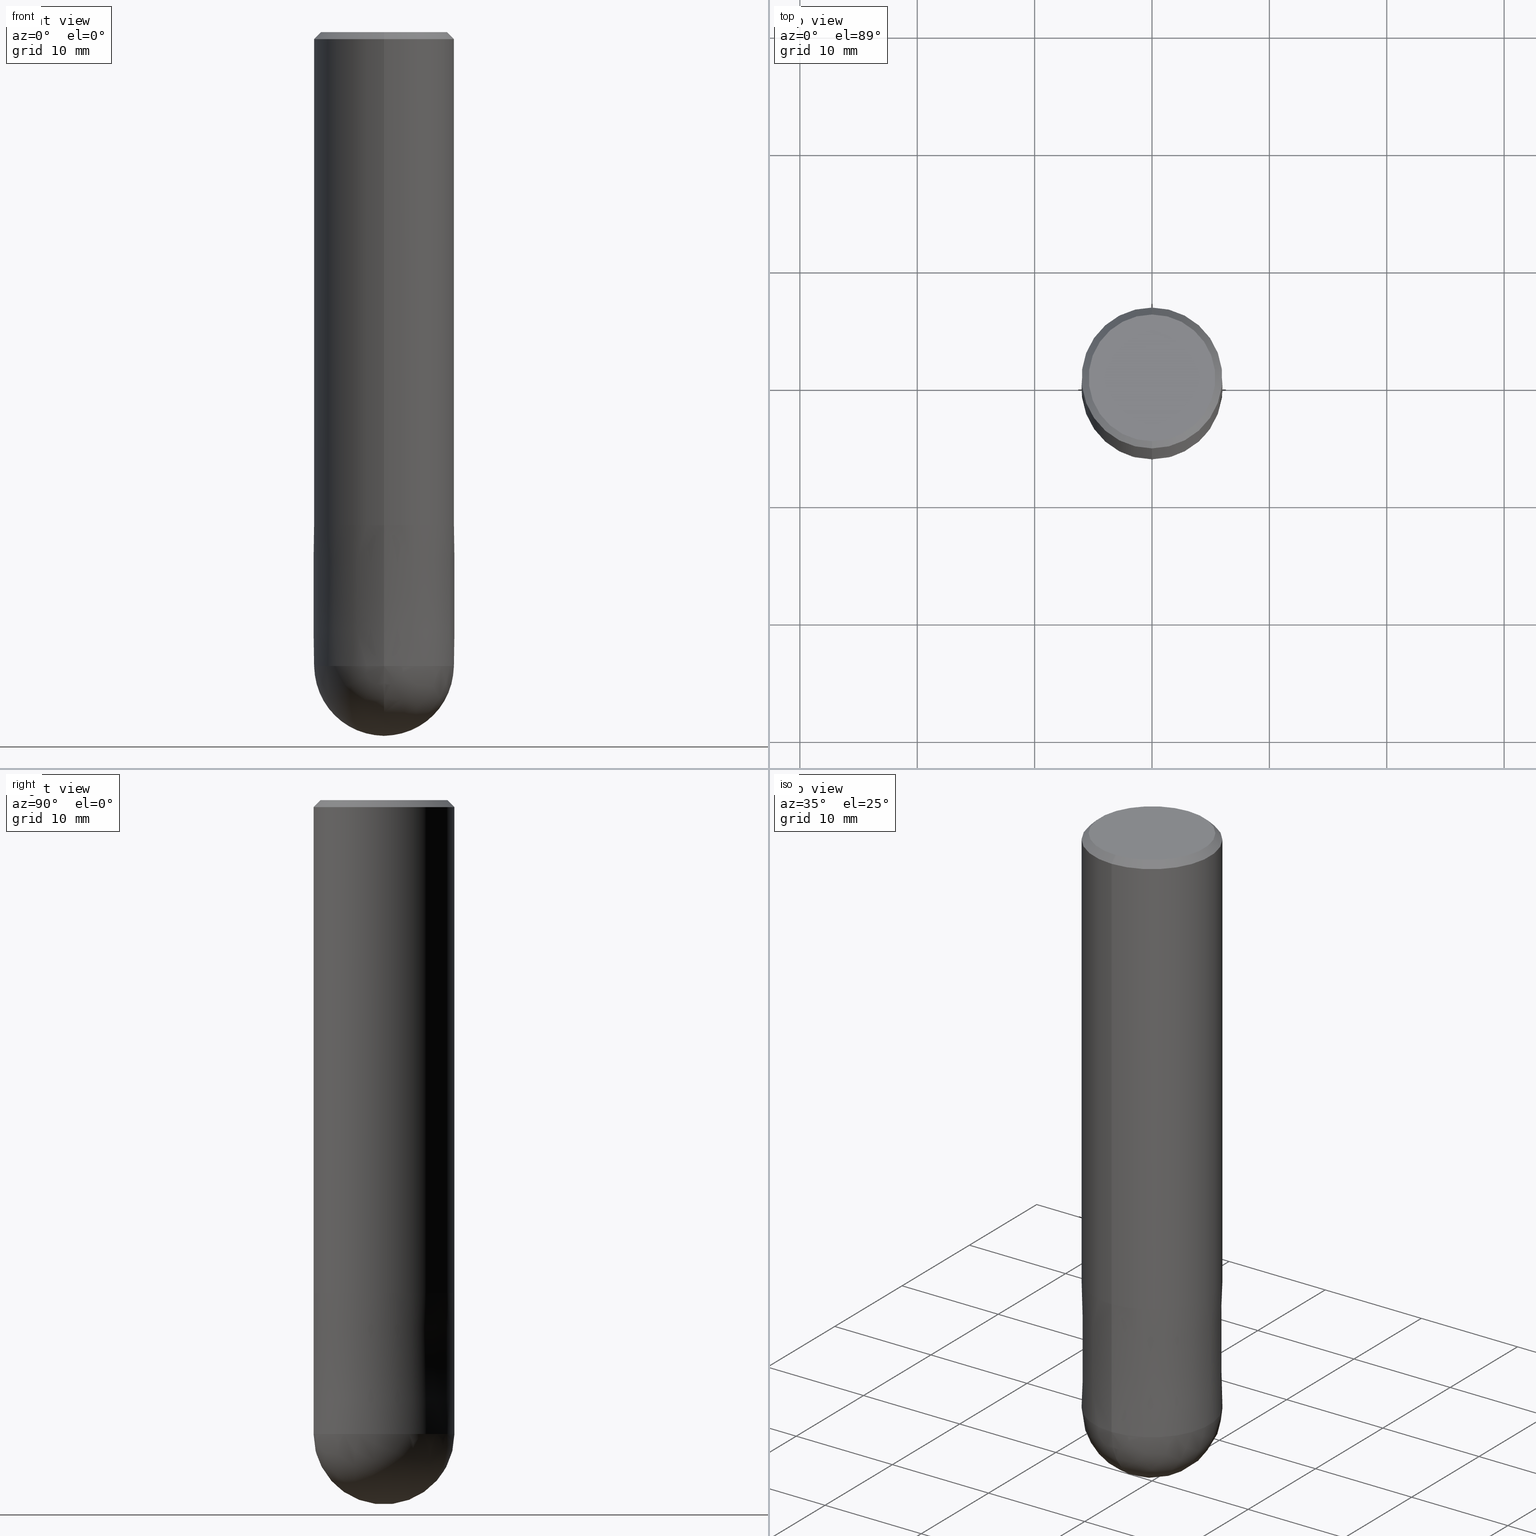
[diagram: canonical four-view strip — front | top / right | iso, engineering-drawing reading convention]
A machine part, canonical four-view strip (front | top / right | iso — engineering-drawing reading convention). The complete STEP part file that produces these views, byte-faithful:
ISO-10303-21;
HEADER;
FILE_DESCRIPTION(('no description'),'unknown implementation level');
FILE_NAME('HFB4120-1800S-Huellk.stp','  ',('CIMSOURCE GmbH'),('CADClick - KiM GmbH - www.kimweb.de'),'unknown preprocess','ACIS','unknown authorization');
FILE_SCHEMA(('automotive_design'));
ENDSEC;
DATA;
#1=MECHANICAL_DESIGN_GEOMETRIC_PRESENTATION_REPRESENTATION(' ',(#10,#11,#12,#13,#14,#15,#16,#17,#18,#19,#20,#21,#22,#23,#24,#25,#26,#27,#28,#29,#30,#31,#32,#33,#34,#35,#36,#37,#38,#39,#40,#41,#42,#43,#44,#45,#46,#47),#6);
#2=PRODUCT_DEFINITION_CONTEXT('',#48,'design');
#3=APPLICATION_PROTOCOL_DEFINITION('INTERNATIONAL STANDARD','automotive_design',1994,#48);
#4=PRODUCT_CATEGORY_RELATIONSHIP('NONE','NONE',#49,#50);
#5=SHAPE_DEFINITION_REPRESENTATION(#51,#52);
#6= (GEOMETRIC_REPRESENTATION_CONTEXT(3)GLOBAL_UNCERTAINTY_ASSIGNED_CONTEXT((#55))GLOBAL_UNIT_ASSIGNED_CONTEXT((#57,#58,#59))REPRESENTATION_CONTEXT('NONE','WORKSPACE'));
#10=STYLED_ITEM('',(#61),#62);
#11=STYLED_ITEM('',(#63),#64);
#12=STYLED_ITEM('',(#65),#66);
#13=STYLED_ITEM('',(#67),#68);
#14=STYLED_ITEM('',(#69),#70);
#15=STYLED_ITEM('',(#71),#72);
#16=STYLED_ITEM('',(#73),#74);
#17=STYLED_ITEM('',(#75),#76);
#18=STYLED_ITEM('',(#77),#78);
#19=STYLED_ITEM('',(#79),#80);
#20=STYLED_ITEM('',(#81),#82);
#21=STYLED_ITEM('',(#83),#84);
#22=STYLED_ITEM('',(#85),#86);
#23=STYLED_ITEM('',(#87),#88);
#24=STYLED_ITEM('',(#89),#90);
#25=STYLED_ITEM('',(#91),#92);
#26=STYLED_ITEM('',(#93),#94);
#27=STYLED_ITEM('',(#95),#96);
#28=STYLED_ITEM('',(#97),#98);
#29=STYLED_ITEM('',(#99),#100);
#30=STYLED_ITEM('',(#101),#102);
#31=STYLED_ITEM('',(#103),#104);
#32=STYLED_ITEM('',(#105),#106);
#33=STYLED_ITEM('',(#107),#108);
#34=STYLED_ITEM('',(#109),#110);
#35=STYLED_ITEM('',(#111),#112);
#36=STYLED_ITEM('',(#113),#114);
#37=STYLED_ITEM('',(#115),#116);
#38=STYLED_ITEM('',(#117),#118);
#39=STYLED_ITEM('',(#119),#120);
#40=STYLED_ITEM('',(#121),#122);
#41=STYLED_ITEM('',(#123),#124);
#42=STYLED_ITEM('',(#125),#126);
#43=STYLED_ITEM('',(#127),#128);
#44=STYLED_ITEM('',(#129),#130);
#45=STYLED_ITEM('',(#131),#132);
#46=STYLED_ITEM('',(#133),#134);
#47=STYLED_ITEM('',(#135),#136);
#48=APPLICATION_CONTEXT(' ');
#49=PRODUCT_CATEGORY('part','NONE');
#50=PRODUCT_RELATED_PRODUCT_CATEGORY('detail',' ',(#137));
#51=PRODUCT_DEFINITION_SHAPE('NONE','NONE',#138);
#52=ADVANCED_BREP_SHAPE_REPRESENTATION('1',(#80,#139),#6);
#55=UNCERTAINTY_MEASURE_WITH_UNIT(LENGTH_MEASURE(1.0E-006),#57,'','');
#57= (CONVERSION_BASED_UNIT('MILLIMETRE',#142)LENGTH_UNIT()NAMED_UNIT(#145));
#58= (NAMED_UNIT(#147)PLANE_ANGLE_UNIT()SI_UNIT($,.RADIAN.));
#59= (NAMED_UNIT(#147)SOLID_ANGLE_UNIT()SI_UNIT($,.STERADIAN.));
#61=PRESENTATION_STYLE_ASSIGNMENT((#153));
#62=ADVANCED_FACE('',(#154),#155,.T.);
#63=PRESENTATION_STYLE_ASSIGNMENT((#156));
#64=ADVANCED_FACE('',(#157),#158,.T.);
#65=PRESENTATION_STYLE_ASSIGNMENT((#159));
#66=VERTEX_POINT('',#160);
#67=PRESENTATION_STYLE_ASSIGNMENT((#161));
#68=ADVANCED_FACE('',(#162,#163),#164,.T.);
#69=PRESENTATION_STYLE_ASSIGNMENT((#165));
#70=EDGE_CURVE('',#126,#110,#166,.T.);
#71=PRESENTATION_STYLE_ASSIGNMENT((#167));
#72=EDGE_CURVE('',#92,#66,#168,.T.);
#73=PRESENTATION_STYLE_ASSIGNMENT((#169));
#74=VERTEX_POINT('',#170);
#75=PRESENTATION_STYLE_ASSIGNMENT((#171));
#76=EDGE_CURVE('',#88,#66,#172,.T.);
#77=PRESENTATION_STYLE_ASSIGNMENT((#173));
#78=VERTEX_POINT('',#174);
#79=PRESENTATION_STYLE_ASSIGNMENT((#175));
#80=MANIFOLD_SOLID_BREP('1',#176);
#81=PRESENTATION_STYLE_ASSIGNMENT((#177));
#82=ADVANCED_FACE('',(#178),#179,.T.);
#83=PRESENTATION_STYLE_ASSIGNMENT((#180));
#84=ADVANCED_FACE('',(#181),#182,.T.);
#85=PRESENTATION_STYLE_ASSIGNMENT((#183));
#86=VERTEX_POINT('',#184);
#87=PRESENTATION_STYLE_ASSIGNMENT((#185));
#88=VERTEX_POINT('',#186);
#89=PRESENTATION_STYLE_ASSIGNMENT((#187));
#90=EDGE_CURVE('',#94,#88,#188,.T.);
#91=PRESENTATION_STYLE_ASSIGNMENT((#189));
#92=VERTEX_POINT('',#190);
#93=PRESENTATION_STYLE_ASSIGNMENT((#191));
#94=VERTEX_POINT('',#192);
#95=PRESENTATION_STYLE_ASSIGNMENT((#193));
#96=EDGE_CURVE('',#116,#110,#194,.T.);
#97=PRESENTATION_STYLE_ASSIGNMENT((#195));
#98=EDGE_CURVE('',#126,#78,#196,.T.);
#99=PRESENTATION_STYLE_ASSIGNMENT((#197));
#100=ADVANCED_FACE('',(#198),#199,.T.);
#101=PRESENTATION_STYLE_ASSIGNMENT((#200));
#102=EDGE_CURVE('',#86,#74,#201,.T.);
#103=PRESENTATION_STYLE_ASSIGNMENT((#202));
#104=ADVANCED_FACE('',(#203),#204,.T.);
#105=PRESENTATION_STYLE_ASSIGNMENT((#205));
#106=EDGE_CURVE('',#116,#110,#206,.T.);
#107=PRESENTATION_STYLE_ASSIGNMENT((#207));
#108=EDGE_CURVE('',#66,#92,#208,.T.);
#109=PRESENTATION_STYLE_ASSIGNMENT((#209));
#110=VERTEX_POINT('',#210);
#111=PRESENTATION_STYLE_ASSIGNMENT((#211));
#112=EDGE_CURVE('',#92,#94,#212,.T.);
#113=PRESENTATION_STYLE_ASSIGNMENT((#213));
#114=EDGE_CURVE('',#78,#126,#214,.T.);
#115=PRESENTATION_STYLE_ASSIGNMENT((#215));
#116=VERTEX_POINT('',#216);
#117=PRESENTATION_STYLE_ASSIGNMENT((#217));
#118=EDGE_CURVE('',#74,#88,#218,.T.);
#119=PRESENTATION_STYLE_ASSIGNMENT((#219));
#120=EDGE_CURVE('',#94,#86,#220,.T.);
#121=PRESENTATION_STYLE_ASSIGNMENT((#221));
#122=EDGE_CURVE('',#110,#116,#222,.T.);
#123=PRESENTATION_STYLE_ASSIGNMENT((#223));
#124=ADVANCED_FACE('',(#224),#225,.T.);
#125=PRESENTATION_STYLE_ASSIGNMENT((#226));
#126=VERTEX_POINT('',#227);
#127=PRESENTATION_STYLE_ASSIGNMENT((#228));
#128=EDGE_CURVE('',#74,#86,#229,.T.);
#129=PRESENTATION_STYLE_ASSIGNMENT((#230));
#130=EDGE_CURVE('',#116,#78,#231,.T.);
#131=PRESENTATION_STYLE_ASSIGNMENT((#232));
#132=EDGE_CURVE('',#88,#94,#233,.T.);
#133=PRESENTATION_STYLE_ASSIGNMENT((#234));
#134=ADVANCED_FACE('',(#235),#236,.T.);
#135=PRESENTATION_STYLE_ASSIGNMENT((#237));
#136=ADVANCED_FACE('',(#238),#239,.T.);
#137=PRODUCT('1','1','PART-1-DESC',(#240));
#138=PRODUCT_DEFINITION('NONE','NONE',#241,#2);
#139=AXIS2_PLACEMENT_3D('',#242,#243,#244);
#142=LENGTH_MEASURE_WITH_UNIT(LENGTH_MEASURE(1.0),#245);
#145=DIMENSIONAL_EXPONENTS(1.0,0.0,0.0,0.0,0.0,0.0,0.0);
#147=DIMENSIONAL_EXPONENTS(0.0,0.0,0.0,0.0,0.0,0.0,0.0);
#153=SURFACE_STYLE_USAGE(.BOTH.,#246);
#154=FACE_OUTER_BOUND('',#247,.T.);
#155=CYLINDRICAL_SURFACE('',#248,6.0);
#156=SURFACE_STYLE_USAGE(.BOTH.,#249);
#157=FACE_OUTER_BOUND('',#250,.T.);
#158=CONICAL_SURFACE('',#251,5.99995,8.33333333319503E-006);
#159=POINT_STYLE(' ',#252,POSITIVE_LENGTH_MEASURE(1.0E-006),#253);
#160=CARTESIAN_POINT('',(6.61287431064084E-016,-5.4,0.0));
#161=SURFACE_STYLE_USAGE(.BOTH.,#254);
#162=FACE_OUTER_BOUND('',#255,.T.);
#163=FACE_BOUND('',#256,.T.);
#164=PLANE('',#257);
#165=CURVE_STYLE('',#258,POSITIVE_LENGTH_MEASURE(1.0E-006),#259);
#166=LINE('',#260,#261);
#167=CURVE_STYLE('',#262,POSITIVE_LENGTH_MEASURE(1.0E-006),#263);
#168=CIRCLE('',#264,5.4);
#169=POINT_STYLE(' ',#265,POSITIVE_LENGTH_MEASURE(1.0E-006),#266);
#170=CARTESIAN_POINT('',(7.34763812293426E-016,-6.0,-42.0));
#171=CURVE_STYLE('',#267,POSITIVE_LENGTH_MEASURE(1.0E-006),#268);
#172=LINE('',#269,#270);
#173=POINT_STYLE(' ',#271,POSITIVE_LENGTH_MEASURE(1.0E-006),#272);
#174=CARTESIAN_POINT('',(7.34751566229888E-016,-5.9999,-42.0));
#175=SURFACE_STYLE_USAGE(.BOTH.,#273);
#176=CLOSED_SHELL('',(#104,#134,#100,#136,#68,#124,#84,#62,#64,#82));
#177=SURFACE_STYLE_USAGE(.BOTH.,#274);
#178=FACE_OUTER_BOUND('',#275,.T.);
#179=SPHERICAL_SURFACE('',#276,6.00000000000001);
#180=SURFACE_STYLE_USAGE(.BOTH.,#277);
#181=FACE_OUTER_BOUND('',#278,.T.);
#182=CONICAL_SURFACE('',#279,5.7,0.785398163397447);
#183=POINT_STYLE(' ',#280,POSITIVE_LENGTH_MEASURE(1.0E-006),#281);
#184=CARTESIAN_POINT('',(0.0,6.0,-42.0));
#185=POINT_STYLE(' ',#282,POSITIVE_LENGTH_MEASURE(1.0E-006),#283);
#186=CARTESIAN_POINT('',(7.34763812293426E-016,-6.0,-0.600000000000001));
#187=CURVE_STYLE('',#284,POSITIVE_LENGTH_MEASURE(1.0E-006),#285);
#188=CIRCLE('',#286,6.0);
#189=POINT_STYLE(' ',#287,POSITIVE_LENGTH_MEASURE(1.0E-006),#288);
#190=CARTESIAN_POINT('',(0.0,5.4,0.0));
#191=POINT_STYLE(' ',#289,POSITIVE_LENGTH_MEASURE(1.0E-006),#290);
#192=CARTESIAN_POINT('',(0.0,6.0,-0.600000000000001));
#193=CURVE_STYLE('',#291,POSITIVE_LENGTH_MEASURE(1.0E-006),#292);
#194=CIRCLE('',#293,6.00000000000001);
#195=CURVE_STYLE('',#294,POSITIVE_LENGTH_MEASURE(1.0E-006),#295);
#196=CIRCLE('',#296,5.9999);
#197=SURFACE_STYLE_USAGE(.BOTH.,#297);
#198=FACE_OUTER_BOUND('',#298,.T.);
#199=CYLINDRICAL_SURFACE('',#299,6.0);
#200=CURVE_STYLE('',#300,POSITIVE_LENGTH_MEASURE(1.0E-006),#301);
#201=CIRCLE('',#302,6.0);
#202=SURFACE_STYLE_USAGE(.BOTH.,#303);
#203=FACE_OUTER_BOUND('',#304,.T.);
#204=SPHERICAL_SURFACE('',#305,6.00000000000001);
#205=CURVE_STYLE('',#306,POSITIVE_LENGTH_MEASURE(1.0E-006),#307);
#206=CIRCLE('',#308,6.0);
#207=CURVE_STYLE('',#309,POSITIVE_LENGTH_MEASURE(1.0E-006),#310);
#208=CIRCLE('',#311,5.4);
#209=POINT_STYLE(' ',#312,POSITIVE_LENGTH_MEASURE(1.0E-006),#313);
#210=CARTESIAN_POINT('',(0.0,6.0,-54.0));
#211=CURVE_STYLE('',#314,POSITIVE_LENGTH_MEASURE(1.0E-006),#315);
#212=LINE('',#316,#317);
#213=CURVE_STYLE('',#318,POSITIVE_LENGTH_MEASURE(1.0E-006),#319);
#214=CIRCLE('',#320,5.9999);
#215=POINT_STYLE(' ',#321,POSITIVE_LENGTH_MEASURE(1.0E-006),#322);
#216=CARTESIAN_POINT('',(7.34763812293426E-016,-6.0,-54.0));
#217=CURVE_STYLE('',#323,POSITIVE_LENGTH_MEASURE(1.0E-006),#324);
#218=LINE('',#325,#326);
#219=CURVE_STYLE('',#327,POSITIVE_LENGTH_MEASURE(1.0E-006),#328);
#220=LINE('',#329,#330);
#221=CURVE_STYLE('',#331,POSITIVE_LENGTH_MEASURE(1.0E-006),#332);
#222=CIRCLE('',#333,6.0);
#223=SURFACE_STYLE_USAGE(.BOTH.,#334);
#224=FACE_OUTER_BOUND('',#335,.T.);
#225=PLANE('',#336);
#226=POINT_STYLE(' ',#337,POSITIVE_LENGTH_MEASURE(1.0E-006),#338);
#227=CARTESIAN_POINT('',(0.0,5.9999,-42.0));
#228=CURVE_STYLE('',#339,POSITIVE_LENGTH_MEASURE(1.0E-006),#340);
#229=CIRCLE('',#341,6.0);
#230=CURVE_STYLE('',#342,POSITIVE_LENGTH_MEASURE(1.0E-006),#343);
#231=LINE('',#344,#345);
#232=CURVE_STYLE('',#346,POSITIVE_LENGTH_MEASURE(1.0E-006),#347);
#233=CIRCLE('',#348,6.0);
#234=SURFACE_STYLE_USAGE(.BOTH.,#349);
#235=FACE_OUTER_BOUND('',#350,.T.);
#236=CONICAL_SURFACE('',#351,5.99995,8.33333333319503E-006);
#237=SURFACE_STYLE_USAGE(.BOTH.,#352);
#238=FACE_OUTER_BOUND('',#353,.T.);
#239=CONICAL_SURFACE('',#354,5.7,0.785398163397447);
#240=PRODUCT_CONTEXT('',#48,'mechanical');
#241=PRODUCT_DEFINITION_FORMATION_WITH_SPECIFIED_SOURCE(' ','NONE',#137,.NOT_KNOWN.);
#242=CARTESIAN_POINT('',(0.0,0.0,0.0));
#243=DIRECTION('',(0.0,0.0,1.0));
#244=DIRECTION('',(1.0,0.0,0.0));
#245= (NAMED_UNIT(#145)LENGTH_UNIT()SI_UNIT(.MILLI.,.METRE.));
#246=SURFACE_SIDE_STYLE('',(#356));
#247=EDGE_LOOP('',(#357,#358,#359,#360));
#248=AXIS2_PLACEMENT_3D('',#361,#362,#363);
#249=SURFACE_SIDE_STYLE('',(#364));
#250=EDGE_LOOP('',(#365,#366,#367,#368));
#251=AXIS2_PLACEMENT_3D('',#369,#370,#371);
#252=PRE_DEFINED_MARKER('');
#253=COLOUR_RGB('',0.498039215803146,0.498039215803146,0.498039215803146);
#254=SURFACE_SIDE_STYLE('',(#372));
#255=EDGE_LOOP('',(#373,#374));
#256=EDGE_LOOP('',(#375,#376));
#257=AXIS2_PLACEMENT_3D('',#377,#378,#379);
#258=DRAUGHTING_PRE_DEFINED_CURVE_FONT('continuous');
#259=COLOUR_RGB('',0.800000011920929,0.800000011920929,0.800000011920929);
#260=CARTESIAN_POINT('',(-7.34757689261657E-016,5.99995,-48.0));
#261=VECTOR('',#380,1.0);
#262=DRAUGHTING_PRE_DEFINED_CURVE_FONT('continuous');
#263=COLOUR_RGB('',0.498039215803146,0.498039215803146,0.498039215803146);
#264=AXIS2_PLACEMENT_3D('',#381,#382,#383);
#265=PRE_DEFINED_MARKER('');
#266=COLOUR_RGB('',0.498039215803146,0.498039215803146,0.498039215803146);
#267=DRAUGHTING_PRE_DEFINED_CURVE_FONT('continuous');
#268=COLOUR_RGB('',0.498039215803146,0.498039215803146,0.498039215803146);
#269=CARTESIAN_POINT('',(6.98025621678755E-016,-5.7,-0.299999999999997));
#270=VECTOR('',#384,1.0);
#271=PRE_DEFINED_MARKER('');
#272=COLOUR_RGB('',0.800000011920929,0.800000011920929,0.800000011920929);
#273=SURFACE_SIDE_STYLE('',(#385));
#274=SURFACE_SIDE_STYLE('',(#386));
#275=EDGE_LOOP('',(#387,#388));
#276=AXIS2_PLACEMENT_3D('',#389,#390,#391);
#277=SURFACE_SIDE_STYLE('',(#392));
#278=EDGE_LOOP('',(#393,#394,#395,#396));
#279=AXIS2_PLACEMENT_3D('',#397,#398,#399);
#280=PRE_DEFINED_MARKER('');
#281=COLOUR_RGB('',0.498039215803146,0.498039215803146,0.498039215803146);
#282=PRE_DEFINED_MARKER('');
#283=COLOUR_RGB('',0.498039215803146,0.498039215803146,0.498039215803146);
#284=DRAUGHTING_PRE_DEFINED_CURVE_FONT('continuous');
#285=COLOUR_RGB('',0.498039215803146,0.498039215803146,0.498039215803146);
#286=AXIS2_PLACEMENT_3D('',#400,#401,#402);
#287=PRE_DEFINED_MARKER('');
#288=COLOUR_RGB('',0.498039215803146,0.498039215803146,0.498039215803146);
#289=PRE_DEFINED_MARKER('');
#290=COLOUR_RGB('',0.498039215803146,0.498039215803146,0.498039215803146);
#291=DRAUGHTING_PRE_DEFINED_CURVE_FONT('continuous');
#292=COLOUR_RGB('',0.800000011920929,0.800000011920929,0.800000011920929);
#293=AXIS2_PLACEMENT_3D('',#403,#404,#405);
#294=DRAUGHTING_PRE_DEFINED_CURVE_FONT('continuous');
#295=COLOUR_RGB('',0.800000011920929,0.800000011920929,0.800000011920929);
#296=AXIS2_PLACEMENT_3D('',#406,#407,#408);
#297=SURFACE_SIDE_STYLE('',(#409));
#298=EDGE_LOOP('',(#410,#411,#412,#413));
#299=AXIS2_PLACEMENT_3D('',#414,#415,#416);
#300=DRAUGHTING_PRE_DEFINED_CURVE_FONT('continuous');
#301=COLOUR_RGB('',0.498039215803146,0.498039215803146,0.498039215803146);
#302=AXIS2_PLACEMENT_3D('',#417,#418,#419);
#303=SURFACE_SIDE_STYLE('',(#420));
#304=EDGE_LOOP('',(#421,#422));
#305=AXIS2_PLACEMENT_3D('',#423,#424,#425);
#306=DRAUGHTING_PRE_DEFINED_CURVE_FONT('continuous');
#307=COLOUR_RGB('',0.800000011920929,0.800000011920929,0.800000011920929);
#308=AXIS2_PLACEMENT_3D('',#426,#427,#428);
#309=DRAUGHTING_PRE_DEFINED_CURVE_FONT('continuous');
#310=COLOUR_RGB('',0.498039215803146,0.498039215803146,0.498039215803146);
#311=AXIS2_PLACEMENT_3D('',#429,#430,#431);
#312=PRE_DEFINED_MARKER('');
#313=COLOUR_RGB('',0.800000011920929,0.800000011920929,0.800000011920929);
#314=DRAUGHTING_PRE_DEFINED_CURVE_FONT('continuous');
#315=COLOUR_RGB('',0.498039215803146,0.498039215803146,0.498039215803146);
#316=CARTESIAN_POINT('',(-6.98025621678755E-016,5.7,-0.299999999999997));
#317=VECTOR('',#432,1.0);
#318=DRAUGHTING_PRE_DEFINED_CURVE_FONT('continuous');
#319=COLOUR_RGB('',0.800000011920929,0.800000011920929,0.800000011920929);
#320=AXIS2_PLACEMENT_3D('',#433,#434,#435);
#321=PRE_DEFINED_MARKER('');
#322=COLOUR_RGB('',0.800000011920929,0.800000011920929,0.800000011920929);
#323=DRAUGHTING_PRE_DEFINED_CURVE_FONT('continuous');
#324=COLOUR_RGB('',0.498039215803146,0.498039215803146,0.498039215803146);
#325=CARTESIAN_POINT('',(7.34763812293426E-016,-6.0,-21.3));
#326=VECTOR('',#436,1.0);
#327=DRAUGHTING_PRE_DEFINED_CURVE_FONT('continuous');
#328=COLOUR_RGB('',0.498039215803146,0.498039215803146,0.498039215803146);
#329=CARTESIAN_POINT('',(-7.34763812293426E-016,6.0,-21.3));
#330=VECTOR('',#437,1.0);
#331=DRAUGHTING_PRE_DEFINED_CURVE_FONT('continuous');
#332=COLOUR_RGB('',0.800000011920929,0.800000011920929,0.800000011920929);
#333=AXIS2_PLACEMENT_3D('',#438,#439,#440);
#334=SURFACE_SIDE_STYLE('',(#441));
#335=EDGE_LOOP('',(#442,#443));
#336=AXIS2_PLACEMENT_3D('',#444,#445,#446);
#337=PRE_DEFINED_MARKER('');
#338=COLOUR_RGB('',0.800000011920929,0.800000011920929,0.800000011920929);
#339=DRAUGHTING_PRE_DEFINED_CURVE_FONT('continuous');
#340=COLOUR_RGB('',0.498039215803146,0.498039215803146,0.498039215803146);
#341=AXIS2_PLACEMENT_3D('',#447,#448,#449);
#342=DRAUGHTING_PRE_DEFINED_CURVE_FONT('continuous');
#343=COLOUR_RGB('',0.800000011920929,0.800000011920929,0.800000011920929);
#344=CARTESIAN_POINT('',(7.34757689261657E-016,-5.99995,-48.0));
#345=VECTOR('',#450,1.0);
#346=DRAUGHTING_PRE_DEFINED_CURVE_FONT('continuous');
#347=COLOUR_RGB('',0.498039215803146,0.498039215803146,0.498039215803146);
#348=AXIS2_PLACEMENT_3D('',#451,#452,#453);
#349=SURFACE_SIDE_STYLE('',(#454));
#350=EDGE_LOOP('',(#455,#456,#457,#458));
#351=AXIS2_PLACEMENT_3D('',#459,#460,#461);
#352=SURFACE_SIDE_STYLE('',(#462));
#353=EDGE_LOOP('',(#463,#464,#465,#466));
#354=AXIS2_PLACEMENT_3D('',#467,#468,#469);
#356=SURFACE_STYLE_FILL_AREA(#470);
#357=ORIENTED_EDGE('',*,*,#120,.T.);
#358=ORIENTED_EDGE('',*,*,#128,.F.);
#359=ORIENTED_EDGE('',*,*,#118,.T.);
#360=ORIENTED_EDGE('',*,*,#132,.T.);
#361=CARTESIAN_POINT('',(0.0,0.0,-21.3));
#362=DIRECTION('',(-0.0,-0.0,1.0));
#363=DIRECTION('',(0.0,1.0,0.0));
#364=SURFACE_STYLE_FILL_AREA(#471);
#365=ORIENTED_EDGE('',*,*,#70,.T.);
#366=ORIENTED_EDGE('',*,*,#106,.F.);
#367=ORIENTED_EDGE('',*,*,#130,.T.);
#368=ORIENTED_EDGE('',*,*,#114,.T.);
#369=CARTESIAN_POINT('',(0.0,0.0,-48.0));
#370=DIRECTION('',(0.0,-0.0,-1.0));
#371=DIRECTION('',(0.0,1.0,0.0));
#372=SURFACE_STYLE_FILL_AREA(#472);
#373=ORIENTED_EDGE('',*,*,#102,.T.);
#374=ORIENTED_EDGE('',*,*,#128,.T.);
#375=ORIENTED_EDGE('',*,*,#98,.F.);
#376=ORIENTED_EDGE('',*,*,#114,.F.);
#377=CARTESIAN_POINT('',(0.0,3.0,-42.0));
#378=DIRECTION('',(0.0,0.0,-1.0));
#379=DIRECTION('',(0.0,1.0,0.0));
#380=DIRECTION('',(-1.02050529482323E-021,8.33333333309857E-006,-0.999999999965278));
#381=CARTESIAN_POINT('',(0.0,0.0,0.0));
#382=DIRECTION('',(0.0,0.0,-1.0));
#383=DIRECTION('',(0.0,1.0,0.0));
#384=DIRECTION('',(-8.65927457071934E-017,0.707106781186546,0.707106781186549));
#385=SURFACE_STYLE_FILL_AREA(#473);
#386=SURFACE_STYLE_FILL_AREA(#474);
#387=ORIENTED_EDGE('',*,*,#96,.T.);
#388=ORIENTED_EDGE('',*,*,#122,.T.);
#389=CARTESIAN_POINT('',(0.0,0.0,-54.0));
#390=DIRECTION('',(0.0,1.0,0.0));
#391=DIRECTION('',(0.0,0.0,-1.0));
#392=SURFACE_STYLE_FILL_AREA(#475);
#393=ORIENTED_EDGE('',*,*,#112,.T.);
#394=ORIENTED_EDGE('',*,*,#132,.F.);
#395=ORIENTED_EDGE('',*,*,#76,.T.);
#396=ORIENTED_EDGE('',*,*,#108,.T.);
#397=CARTESIAN_POINT('',(0.0,0.0,-0.299999999999997));
#398=DIRECTION('',(0.0,-0.0,-1.0));
#399=DIRECTION('',(0.0,1.0,0.0));
#400=CARTESIAN_POINT('',(0.0,0.0,-0.600000000000001));
#401=DIRECTION('',(0.0,0.0,-1.0));
#402=DIRECTION('',(0.0,1.0,0.0));
#403=CARTESIAN_POINT('',(0.0,0.0,-54.0));
#404=DIRECTION('',(1.0,0.0,1.22460635382238E-016));
#405=DIRECTION('',(-1.22460635382238E-016,0.0,1.0));
#406=CARTESIAN_POINT('',(0.0,0.0,-42.0));
#407=DIRECTION('',(0.0,0.0,-1.0));
#408=DIRECTION('',(0.0,1.0,0.0));
#409=SURFACE_STYLE_FILL_AREA(#476);
#410=ORIENTED_EDGE('',*,*,#120,.F.);
#411=ORIENTED_EDGE('',*,*,#90,.T.);
#412=ORIENTED_EDGE('',*,*,#118,.F.);
#413=ORIENTED_EDGE('',*,*,#102,.F.);
#414=CARTESIAN_POINT('',(0.0,0.0,-21.3));
#415=DIRECTION('',(-0.0,-0.0,1.0));
#416=DIRECTION('',(0.0,1.0,0.0));
#417=CARTESIAN_POINT('',(0.0,0.0,-42.0));
#418=DIRECTION('',(0.0,0.0,-1.0));
#419=DIRECTION('',(0.0,1.0,0.0));
#420=SURFACE_STYLE_FILL_AREA(#477);
#421=ORIENTED_EDGE('',*,*,#96,.F.);
#422=ORIENTED_EDGE('',*,*,#106,.T.);
#423=CARTESIAN_POINT('',(0.0,0.0,-54.0));
#424=DIRECTION('',(0.0,1.0,0.0));
#425=DIRECTION('',(0.0,0.0,-1.0));
#426=CARTESIAN_POINT('',(0.0,0.0,-54.0));
#427=DIRECTION('',(0.0,0.0,-1.0));
#428=DIRECTION('',(0.0,1.0,0.0));
#429=CARTESIAN_POINT('',(0.0,0.0,0.0));
#430=DIRECTION('',(0.0,0.0,-1.0));
#431=DIRECTION('',(0.0,1.0,0.0));
#432=DIRECTION('',(-8.65927457071934E-017,0.707106781186546,-0.707106781186549));
#433=CARTESIAN_POINT('',(0.0,0.0,-42.0));
#434=DIRECTION('',(0.0,0.0,-1.0));
#435=DIRECTION('',(0.0,1.0,0.0));
#436=DIRECTION('',(-0.0,-0.0,1.0));
#437=DIRECTION('',(0.0,0.0,-1.0));
#438=CARTESIAN_POINT('',(0.0,0.0,-54.0));
#439=DIRECTION('',(0.0,0.0,-1.0));
#440=DIRECTION('',(0.0,1.0,0.0));
#441=SURFACE_STYLE_FILL_AREA(#478);
#442=ORIENTED_EDGE('',*,*,#72,.F.);
#443=ORIENTED_EDGE('',*,*,#108,.F.);
#444=CARTESIAN_POINT('',(0.0,2.7,0.0));
#445=DIRECTION('',(-0.0,0.0,1.0));
#446=DIRECTION('',(0.0,-1.0,0.0));
#447=CARTESIAN_POINT('',(0.0,0.0,-42.0));
#448=DIRECTION('',(0.0,0.0,-1.0));
#449=DIRECTION('',(0.0,1.0,0.0));
#450=DIRECTION('',(-1.02050529482323E-021,8.33333333309857E-006,0.999999999965278));
#451=CARTESIAN_POINT('',(0.0,0.0,-0.600000000000001));
#452=DIRECTION('',(0.0,0.0,-1.0));
#453=DIRECTION('',(0.0,1.0,0.0));
#454=SURFACE_STYLE_FILL_AREA(#479);
#455=ORIENTED_EDGE('',*,*,#70,.F.);
#456=ORIENTED_EDGE('',*,*,#98,.T.);
#457=ORIENTED_EDGE('',*,*,#130,.F.);
#458=ORIENTED_EDGE('',*,*,#122,.F.);
#459=CARTESIAN_POINT('',(0.0,0.0,-48.0));
#460=DIRECTION('',(0.0,-0.0,-1.0));
#461=DIRECTION('',(0.0,1.0,0.0));
#462=SURFACE_STYLE_FILL_AREA(#480);
#463=ORIENTED_EDGE('',*,*,#112,.F.);
#464=ORIENTED_EDGE('',*,*,#72,.T.);
#465=ORIENTED_EDGE('',*,*,#76,.F.);
#466=ORIENTED_EDGE('',*,*,#90,.F.);
#467=CARTESIAN_POINT('',(0.0,0.0,-0.299999999999997));
#468=DIRECTION('',(0.0,-0.0,-1.0));
#469=DIRECTION('',(0.0,1.0,0.0));
#470=FILL_AREA_STYLE('',(#481));
#471=FILL_AREA_STYLE('',(#482));
#472=FILL_AREA_STYLE('',(#483));
#473=FILL_AREA_STYLE('',(#484));
#474=FILL_AREA_STYLE('',(#485));
#475=FILL_AREA_STYLE('',(#486));
#476=FILL_AREA_STYLE('',(#487));
#477=FILL_AREA_STYLE('',(#488));
#478=FILL_AREA_STYLE('',(#489));
#479=FILL_AREA_STYLE('',(#490));
#480=FILL_AREA_STYLE('',(#491));
#481=FILL_AREA_STYLE_COLOUR('',#492);
#482=FILL_AREA_STYLE_COLOUR('',#493);
#483=FILL_AREA_STYLE_COLOUR('',#494);
#484=FILL_AREA_STYLE_COLOUR('',#495);
#485=FILL_AREA_STYLE_COLOUR('',#496);
#486=FILL_AREA_STYLE_COLOUR('',#497);
#487=FILL_AREA_STYLE_COLOUR('',#498);
#488=FILL_AREA_STYLE_COLOUR('',#499);
#489=FILL_AREA_STYLE_COLOUR('',#500);
#490=FILL_AREA_STYLE_COLOUR('',#501);
#491=FILL_AREA_STYLE_COLOUR('',#502);
#492=COLOUR_RGB('',0.498039215803146,0.498039215803146,0.498039215803146);
#493=COLOUR_RGB('',0.800000011920929,0.800000011920929,0.800000011920929);
#494=COLOUR_RGB('',0.498039215803146,0.498039215803146,0.498039215803146);
#495=COLOUR_RGB('',0.800000011920929,0.800000011920929,0.800000011920929);
#496=COLOUR_RGB('',0.800000011920929,0.800000011920929,0.800000011920929);
#497=COLOUR_RGB('',0.498039215803146,0.498039215803146,0.498039215803146);
#498=COLOUR_RGB('',0.498039215803146,0.498039215803146,0.498039215803146);
#499=COLOUR_RGB('',0.800000011920929,0.800000011920929,0.800000011920929);
#500=COLOUR_RGB('',0.498039215803146,0.498039215803146,0.498039215803146);
#501=COLOUR_RGB('',0.800000011920929,0.800000011920929,0.800000011920929);
#502=COLOUR_RGB('',0.498039215803146,0.498039215803146,0.498039215803146);
#503=AXIS2_PLACEMENT_3D('PCS',#504,#505,#506);
#504=CARTESIAN_POINT('',(0.0,0.0,0.0));
#505=DIRECTION('',(0.0,0.0,1.0));
#506=DIRECTION('',(1.0,0.0,0.0));
#507=AXIS2_PLACEMENT_3D('CIP',#508,#509,#510);
#508=CARTESIAN_POINT('',(0.0,0.0,-60.0));
#509=DIRECTION('',(0.0,0.0,1.0));
#510=DIRECTION('',(1.0,0.0,0.0));
#511=AXIS2_PLACEMENT_3D('CRP',#512,#513,#514);
#512=CARTESIAN_POINT('',(-6.0,0.0,-60.0));
#513=DIRECTION('',(0.0,0.0,1.0));
#514=DIRECTION('',(1.0,0.0,0.0));
#515=AXIS2_PLACEMENT_3D('MCS',#516,#517,#518);
#516=CARTESIAN_POINT('',(0.0,0.0,-42.0));
#517=DIRECTION('',(0.0,0.0,1.0));
#518=DIRECTION('',(1.0,0.0,0.0));
#519=CONSTRUCTIVE_GEOMETRY_REPRESENTATION_RELATIONSHIP('coordinate systems',$,#52,#520);
#520=CONSTRUCTIVE_GEOMETRY_REPRESENTATION('coordinate systems',(#503,#507,#511,#515),#6);
ENDSEC;
END-ISO-10303-21;
